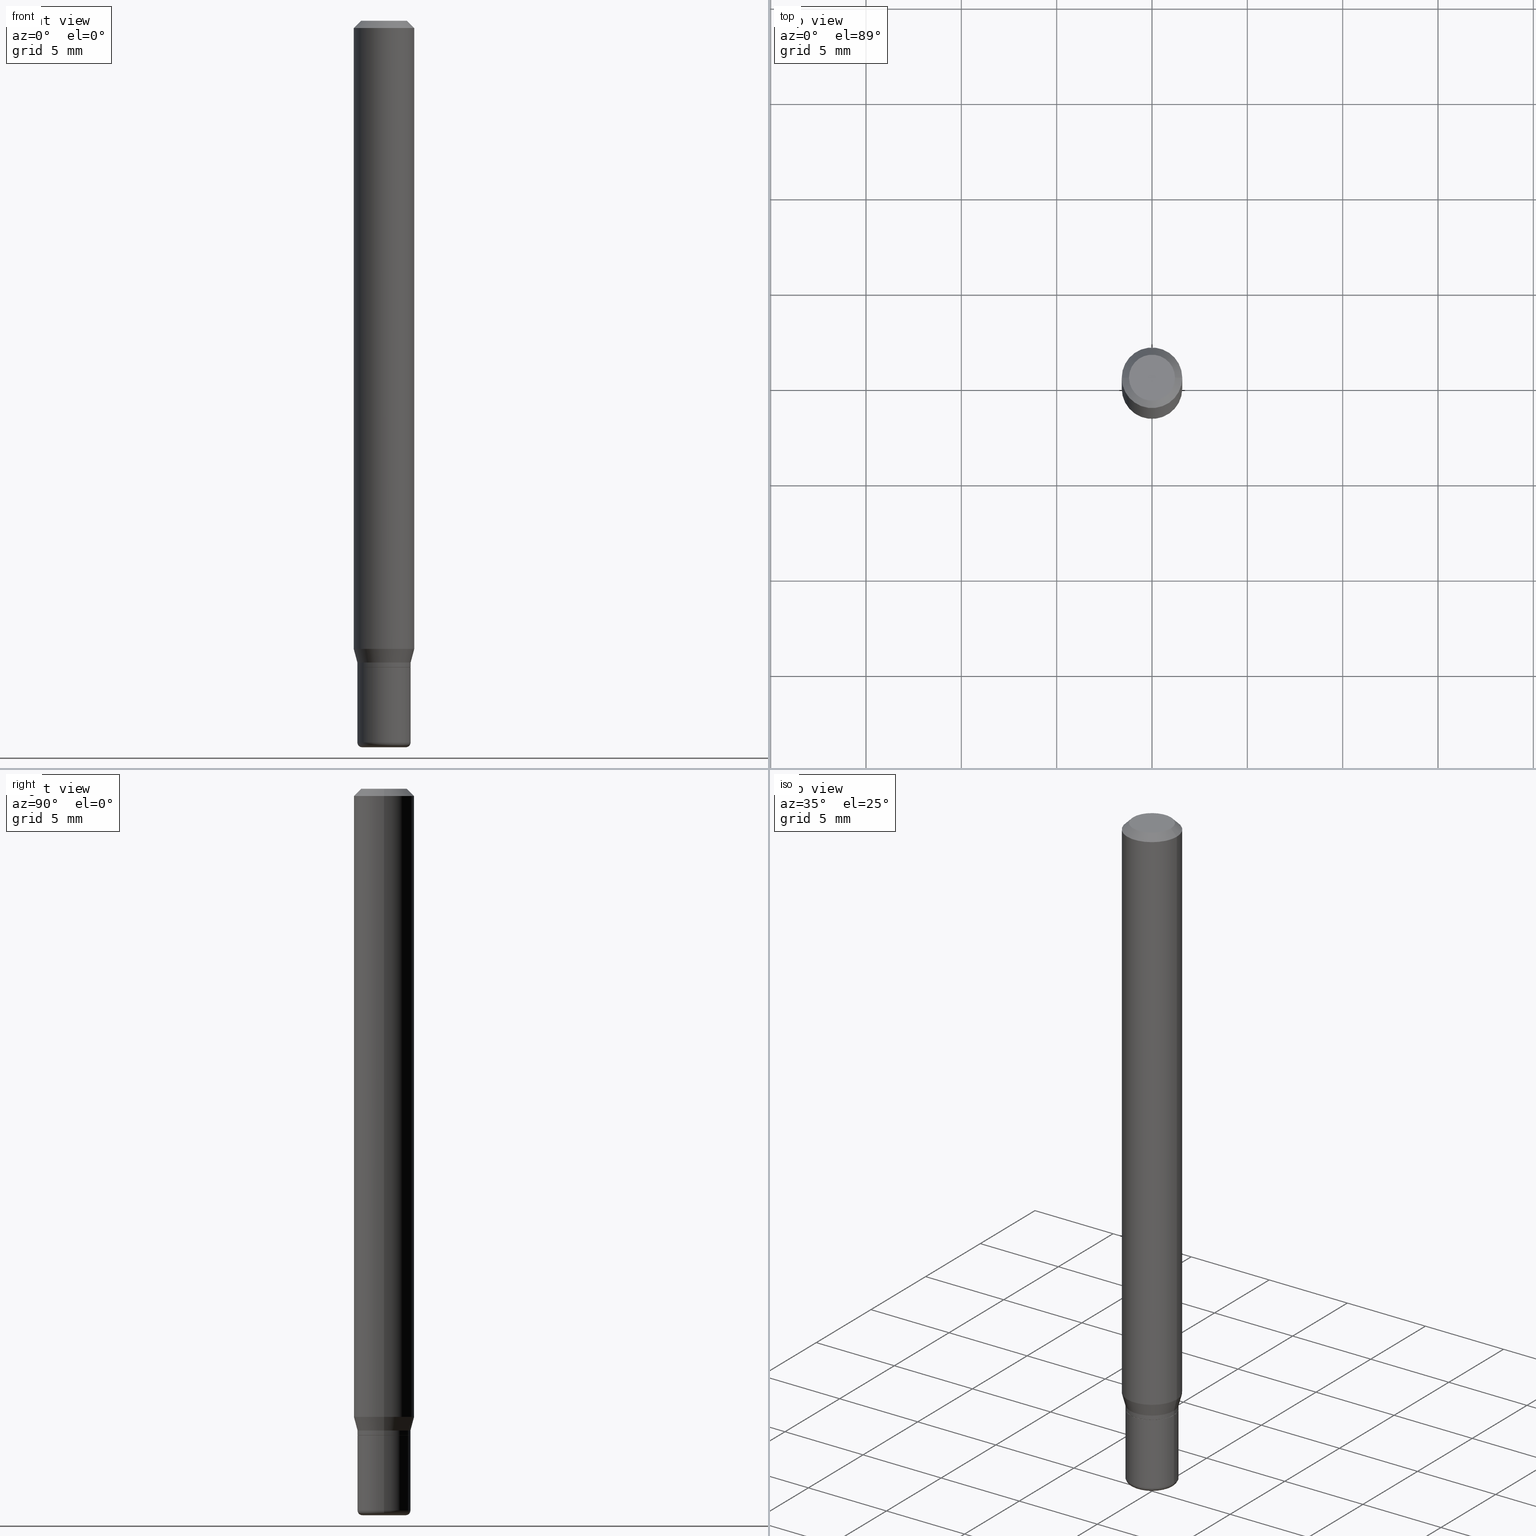
[diagram: canonical four-view strip — front | top / right | iso, engineering-drawing reading convention]
A machine part, canonical four-view strip (front | top / right | iso — engineering-drawing reading convention). The complete STEP part file that produces these views, byte-faithful:
ISO-10303-21;
HEADER;
FILE_DESCRIPTION (( 'STEP AP203' ),
    '1' );
FILE_NAME ('08754.STEP',
    '2024-02-29T20:50:00',
    ( '' ),
    ( '' ),
    'SwSTEP 2.0',
    'SolidWorks 2023',
    '' );
FILE_SCHEMA (( 'CONFIG_CONTROL_DESIGN' ));
ENDSEC;

DATA;
#1 = ORIENTED_EDGE ( 'NONE', *, *, #237, .T. ) ;
#2 = APPLICATION_CONTEXT ( 'configuration controlled 3d designs of mechanical parts and assemblies' ) ;
#3 = MECHANICAL_CONTEXT ( 'NONE', #2, 'mechanical' ) ;
#4 = CARTESIAN_POINT ( 'NONE',  ( 0.05499999999999998640, -3.840629472727445409E-16, 2.681897226687763775E-30 ) ) ;
#5 = DATE_AND_TIME ( #342, #300 ) ;
#6 = DIRECTION ( 'NONE',  ( -2.445468806185136597E-29, 3.491481338843145583E-15, 1.000000000000000000 ) ) ;
#7 = FACE_OUTER_BOUND ( 'NONE', #235, .T. ) ;
#8 = CIRCLE ( 'NONE', #392, 0.009999999999999953371 ) ;
#9 = DIRECTION ( 'NONE',  ( 1.000000000000000000, -6.982962677686269077E-15, 0.000000000000000000 ) ) ;
#10 = EDGE_LOOP ( 'NONE', ( #144, #101, #156, #16 ) ) ;
#11 = DIRECTION ( 'NONE',  ( 1.000000000000000000, -6.982962677686268288E-15, 4.883557194083113462E-29 ) ) ;
#12 = CARTESIAN_POINT ( 'NONE',  ( 0.04499999999999999833, -5.551455328760600652E-15, -1.500000000000000222 ) ) ;
#13 = ORIENTED_EDGE ( 'NONE', *, *, #193, .F. ) ;
#14 = VERTEX_POINT ( 'NONE', #190 ) ;
#15 = EDGE_CURVE ( 'NONE', #100, #138, #270, .T. ) ;
#16 = ORIENTED_EDGE ( 'NONE', *, *, #320, .F. ) ;
#17 = ORIENTED_EDGE ( 'NONE', *, *, #204, .T. ) ;
#18 = CIRCLE ( 'NONE', #99, 0.06250000000000000000 ) ;
#19 = AXIS2_PLACEMENT_3D ( 'NONE', #486, #42, #92 ) ;
#20 = ORIENTED_EDGE ( 'NONE', *, *, #90, .T. ) ;
#21 = ORIENTED_EDGE ( 'NONE', *, *, #204, .F. ) ;
#22 = ORIENTED_EDGE ( 'NONE', *, *, #32, .F. ) ;
#23 = DIRECTION ( 'NONE',  ( -0.2588190451025210170, 5.211531920934547886E-15, 0.9659258262890682012 ) ) ;
#24 = ADVANCED_FACE ( 'NONE', ( #155 ), #231, .T. ) ;
#25 = FACE_OUTER_BOUND ( 'NONE', #499, .T. ) ;
#26 = APPROVAL_DATE_TIME ( #243, #470 ) ;
#27 = CARTESIAN_POINT ( 'NONE',  ( 3.240246168195306775E-29, -4.626212773967169051E-15, -1.325000000000000178 ) ) ;
#28 = CIRCLE ( 'NONE', #502, 0.05500000000000000028 ) ;
#29 = DIRECTION ( 'NONE',  ( 1.000000000000000000, -6.982962677686265922E-15, 4.876176775795935232E-29 ) ) ;
#30 = EDGE_CURVE ( 'NONE', #464, #442, #478, .T. ) ;
#31 = DIRECTION ( 'NONE',  ( 1.000000000000000000, -6.982962677686266711E-15, 4.852736867747365086E-29 ) ) ;
#32 = EDGE_CURVE ( 'NONE', #425, #74, #158, .T. ) ;
#33 = FACE_OUTER_BOUND ( 'NONE', #59, .T. ) ;
#34 = DIRECTION ( 'NONE',  ( 1.000000000000000000, -6.982962677686263555E-15, 0.000000000000000000 ) ) ;
#35 = EDGE_LOOP ( 'NONE', ( #386, #428, #437, #395 ) ) ;
#36 = CC_DESIGN_APPROVAL ( #470, ( #384 ) ) ;
#37 = APPROVAL_STATUS ( 'not_yet_approved' ) ;
#38 = CARTESIAN_POINT ( 'NONE',  ( 3.264700856257157760E-29, -4.661127587355599122E-15, -1.335000000000000187 ) ) ;
#39 = DIRECTION ( 'NONE',  ( -2.445468806185136597E-29, 3.491481338843145583E-15, 1.000000000000000000 ) ) ;
#40 = EDGE_LOOP ( 'NONE', ( #366, #305, #56, #234 ) ) ;
#41 = CYLINDRICAL_SURFACE ( 'NONE', #63, 0.05499999999999997946 ) ;
#42 = DIRECTION ( 'NONE',  ( -2.445468806185136597E-29, 3.491481338843145583E-15, 1.000000000000000000 ) ) ;
#43 = VECTOR ( 'NONE', #475, 39.37007874015748143 ) ;
#44 = CIRCLE ( 'NONE', #357, 0.05499999999999999334 ) ;
#45 = DIRECTION ( 'NONE',  ( 0.2588190451025210170, 1.565188264969624531E-15, 0.9659258262890682012 ) ) ;
#46 = AXIS2_PLACEMENT_3D ( 'NONE', #358, #315, #194 ) ;
#47 = PERSON_AND_ORGANIZATION ( #54, #322 ) ;
#48 = CYLINDRICAL_SURFACE ( 'NONE', #379, 0.06250000000000000000 ) ;
#49 = CARTESIAN_POINT ( 'NONE',  ( 3.264700856257157760E-29, -4.661127587355599122E-15, -1.335000000000000187 ) ) ;
#50 = CARTESIAN_POINT ( 'NONE',  ( 3.668203209277704895E-29, -5.237222008264718177E-15, -1.500000000000000222 ) ) ;
#51 = VERTEX_POINT ( 'NONE', #116 ) ;
#52 = AXIS2_PLACEMENT_3D ( 'NONE', #268, #347, #128 ) ;
#53 = EDGE_CURVE ( 'NONE', #425, #338, #146, .T. ) ;
#54 = PERSON ( 'UNSPECIFIED', 'UNSPECIFIED', 'UNSPECIFIED', ('UNSPECIFIED'), ('UNSPECIFIED'), ('UNSPECIFIED') ) ;
#55 = LINE ( 'NONE', #456, #455 ) ;
#56 = ORIENTED_EDGE ( 'NONE', *, *, #419, .F. ) ;
#57 = COORDINATED_UNIVERSAL_TIME_OFFSET ( 5, 0, .BEHIND. ) ;
#58 = CC_DESIGN_PERSON_AND_ORGANIZATION_ASSIGNMENT ( #87, #381, ( #457 ) ) ;
#59 = EDGE_LOOP ( 'NONE', ( #463, #107, #341, #117 ) ) ;
#60 =( LENGTH_UNIT ( ) NAMED_UNIT ( * ) SI_UNIT ( $, .METRE. ) );
#61 = FACE_OUTER_BOUND ( 'NONE', #504, .T. ) ;
#62 = ORIENTED_EDGE ( 'NONE', *, *, #446, .F. ) ;
#63 = AXIS2_PLACEMENT_3D ( 'NONE', #294, #167, #211 ) ;
#64 = EDGE_LOOP ( 'NONE', ( #1, #238, #22, #355 ) ) ;
#65 = EDGE_CURVE ( 'NONE', #338, #394, #28, .T. ) ;
#66 = FACE_OUTER_BOUND ( 'NONE', #64, .T. ) ;
#67 = CARTESIAN_POINT ( 'NONE',  ( -0.05500000000000000028, -4.540918886447888559E-15, -1.335000000000000187 ) ) ;
#68 = PLANE ( 'NONE',  #340 ) ;
#69 = CARTESIAN_POINT ( 'NONE',  ( 3.668203209277632395E-31, -5.237222008264614861E-17, -0.01499999999999970281 ) ) ;
#70 = CIRCLE ( 'NONE', #277, 0.05449999999999997208 ) ;
#71 = CIRCLE ( 'NONE', #19, 0.04499999999999999833 ) ;
#72 = DIRECTION ( 'NONE',  ( 1.000000000000000000, -6.982962677686262766E-15, 0.000000000000000000 ) ) ;
#73 = FACE_OUTER_BOUND ( 'NONE', #415, .T. ) ;
#74 = VERTEX_POINT ( 'NONE', #373 ) ;
#75 = DIRECTION ( 'NONE',  ( -2.445468806185136597E-29, 3.491481338843145583E-15, 1.000000000000000000 ) ) ;
#76 = DIRECTION ( 'NONE',  ( -2.445468806185136597E-29, 3.491481338843145583E-15, 1.000000000000000000 ) ) ;
#77 = DIRECTION ( 'NONE',  ( -2.445468806185136597E-29, 3.491481338843145583E-15, 1.000000000000000000 ) ) ;
#78 = CARTESIAN_POINT ( 'NONE',  ( 0.000000000000000000, 0.000000000000000000, 0.000000000000000000 ) ) ;
#79 = DIRECTION ( 'NONE',  ( 1.000000000000000000, -6.982962677686263555E-15, 0.000000000000000000 ) ) ;
#80 = ORIENTED_EDGE ( 'NONE', *, *, #482, .T. ) ;
#81 = AXIS2_PLACEMENT_3D ( 'NONE', #443, #157, #31 ) ;
#82 = APPROVAL_PERSON_ORGANIZATION ( #363, #98, #472 ) ;
#83 = CARTESIAN_POINT ( 'NONE',  ( -0.04499999999999999833, -4.864493233690452733E-15, -1.500000000000000222 ) ) ;
#84 = APPROVAL_DATE_TIME ( #5, #212 ) ;
#85 = DIRECTION ( 'NONE',  ( 2.445468806185136597E-29, -3.491481338843145583E-15, -1.000000000000000000 ) ) ;
#86 = DIRECTION ( 'NONE',  ( 1.000000000000000000, -6.982962677686273810E-15, 0.000000000000000000 ) ) ;
#87 = PERSON_AND_ORGANIZATION ( #54, #322 ) ;
#88 = CLOSED_SHELL ( 'NONE', ( #393, #206, #95, #175, #492, #24, #162, #382, #185, #447, #119, #172 ) ) ;
#89 = CIRCLE ( 'NONE', #391, 0.009999999999999953371 ) ;
#90 = EDGE_CURVE ( 'NONE', #317, #464, #481, .T. ) ;
#91 = APPROVAL_PERSON_ORGANIZATION ( #344, #212, #169 ) ;
#92 = DIRECTION ( 'NONE',  ( 1.000000000000000000, -6.982962677686269077E-15, 0.000000000000000000 ) ) ;
#93 = DIRECTION ( 'NONE',  ( 1.000000000000000000, -6.982962677686266711E-15, 0.000000000000000000 ) ) ;
#94 = LENGTH_MEASURE_WITH_UNIT ( LENGTH_MEASURE( 0.02539999999999999897 ), #60 );
#95 = ADVANCED_FACE ( 'NONE', ( #121 ), #332, .T. ) ;
#96 = ORIENTED_EDGE ( 'NONE', *, *, #320, .T. ) ;
#97 = FACE_OUTER_BOUND ( 'NONE', #113, .T. ) ;
#98 = APPROVAL ( #239, 'UNSPECIFIED' ) ;
#99 = AXIS2_PLACEMENT_3D ( 'NONE', #69, #132, #93 ) ;
#100 = VERTEX_POINT ( 'NONE', #291 ) ;
#101 = ORIENTED_EDGE ( 'NONE', *, *, #280, .T. ) ;
#102 = ORIENTED_EDGE ( 'NONE', *, *, #297, .T. ) ;
#103 = VERTEX_POINT ( 'NONE', #83 ) ;
#104 = EDGE_CURVE ( 'NONE', #133, #51, #197, .T. ) ;
#105 = AXIS2_PLACEMENT_3D ( 'NONE', #182, #142, #11 ) ;
#106 = CONICAL_SURFACE ( 'NONE', #120, 0.06250000000000000000, 0.7853981633974488341 ) ;
#107 = ORIENTED_EDGE ( 'NONE', *, *, #248, .T. ) ;
#108 = CARTESIAN_POINT ( 'NONE',  ( -0.06250000000000000000, 4.440892098500626162E-16, -3.074334431409316114E-30 ) ) ;
#109 = COORDINATED_UNIVERSAL_TIME_OFFSET ( 5, 0, .BEHIND. ) ;
#110 = DIRECTION ( 'NONE',  ( 1.000000000000000000, -6.982962677686262766E-15, 0.000000000000000000 ) ) ;
#111 = CARTESIAN_POINT ( 'NONE',  ( 0.06250000000000000000, -4.811533449433669144E-16, -0.01499999999999970281 ) ) ;
#112 = EDGE_CURVE ( 'NONE', #228, #464, #220, .T. ) ;
#113 = EDGE_LOOP ( 'NONE', ( #188, #361, #225, #346 ) ) ;
#114 = AXIS2_PLACEMENT_3D ( 'NONE', #150, #284, #462 ) ;
#115 = CARTESIAN_POINT ( 'NONE',  ( 3.264700856257157760E-29, -4.661127587355599122E-15, -1.335000000000000187 ) ) ;
#116 = CARTESIAN_POINT ( 'NONE',  ( -0.06250000000000000000, -4.084395670990297185E-15, -1.297009618943233633 ) ) ;
#117 = ORIENTED_EDGE ( 'NONE', *, *, #53, .F. ) ;
#118 = CARTESIAN_POINT ( 'NONE',  ( 3.668203209277632395E-31, -5.237222008264614861E-17, -0.01499999999999970281 ) ) ;
#119 = ADVANCED_FACE ( 'NONE', ( #412 ), #287, .T. ) ;
#120 = AXIS2_PLACEMENT_3D ( 'NONE', #292, #506, #202 ) ;
#121 = FACE_OUTER_BOUND ( 'NONE', #496, .T. ) ;
#122 = DIRECTION ( 'NONE',  ( -2.445468806185136597E-29, 3.491481338843145583E-15, 1.000000000000000000 ) ) ;
#123 = CALENDAR_DATE ( 2024, 29, 2 ) ;
#124 = CARTESIAN_POINT ( 'NONE',  ( 3.240246168195306775E-29, -4.626212773967169051E-15, -1.325000000000000178 ) ) ;
#125 = EDGE_CURVE ( 'NONE', #228, #422, #514, .T. ) ;
#126 = CIRCLE ( 'NONE', #81, 0.04750000000000000749 ) ;
#127 = CONICAL_SURFACE ( 'NONE', #491, 0.05499999999999999334, 0.2617993877991496854 ) ;
#128 = DIRECTION ( 'NONE',  ( 1.000000000000000000, -6.982962677686262766E-15, 0.000000000000000000 ) ) ;
#129 = DIRECTION ( 'NONE',  ( -2.445468806185136597E-29, 3.491481338843145583E-15, 1.000000000000000000 ) ) ;
#130 = ORIENTED_EDGE ( 'NONE', *, *, #15, .T. ) ;
#131 = PRODUCT_RELATED_PRODUCT_CATEGORY ( 'detail', '', ( #289 ) ) ;
#132 = DIRECTION ( 'NONE',  ( -2.445468806185136597E-29, 3.491481338843145583E-15, 1.000000000000000000 ) ) ;
#133 = VERTEX_POINT ( 'NONE', #286 ) ;
#134 = AXIS2_PLACEMENT_3D ( 'NONE', #439, #76, #362 ) ;
#135 = VECTOR ( 'NONE', #329, 39.37007874015748143 ) ;
#136 = AXIS2_PLACEMENT_3D ( 'NONE', #254, #434, #267 ) ;
#137 = ORIENTED_EDGE ( 'NONE', *, *, #507, .T. ) ;
#138 = VERTEX_POINT ( 'NONE', #479 ) ;
#139 = EDGE_LOOP ( 'NONE', ( #62, #17, #209, #165 ) ) ;
#140 = DIRECTION ( 'NONE',  ( 1.000000000000000000, -6.982962677686266711E-15, 4.876176775795935793E-29 ) ) ;
#141 = MANIFOLD_SOLID_BREP ( 'Body-Move/Copy2[1]', #374 ) ;
#142 = DIRECTION ( 'NONE',  ( -2.445468806185136597E-29, 3.491481338843145583E-15, 1.000000000000000000 ) ) ;
#143 = CYLINDRICAL_SURFACE ( 'NONE', #321, 0.05499999999999998640 ) ;
#144 = ORIENTED_EDGE ( 'NONE', *, *, #30, .F. ) ;
#145 = CIRCLE ( 'NONE', #408, 0.05499999999999995171 ) ;
#146 = LINE ( 'NONE', #293, #306 ) ;
#147 = ORIENTED_EDGE ( 'NONE', *, *, #507, .F. ) ;
#148 = DIRECTION ( 'NONE',  ( 1.000000000000000000, -6.982962677686273810E-15, 0.000000000000000000 ) ) ;
#149 = ADVANCED_FACE ( 'NONE', ( #33 ), #41, .T. ) ;
#150 = CARTESIAN_POINT ( 'NONE',  ( 3.316907271900976589E-16, 0.04750000000000000749, -2.925296391183627249E-17 ) ) ;
#151 = DIRECTION ( 'NONE',  ( 2.438088387897960049E-29, -3.491481338843145188E-15, -1.000000000000000000 ) ) ;
#152 = CALENDAR_DATE ( 2024, 29, 2 ) ;
#153 = EDGE_CURVE ( 'NONE', #14, #454, #126, .T. ) ;
#154 = DIRECTION ( 'NONE',  ( 1.000000000000000000, -6.982962677686268288E-15, 4.883557194083113462E-29 ) ) ;
#155 = FACE_OUTER_BOUND ( 'NONE', #458, .T. ) ;
#156 = ORIENTED_EDGE ( 'NONE', *, *, #125, .T. ) ;
#157 = DIRECTION ( 'NONE',  ( -2.445468806185136597E-29, 3.491481338843145583E-15, 1.000000000000000000 ) ) ;
#158 = CIRCLE ( 'NONE', #515, 0.05499999999999995171 ) ;
#159 = AXIS2_PLACEMENT_3D ( 'NONE', #307, #451, #350 ) ;
#160 = DESIGN_CONTEXT ( 'detailed design', #411, 'design' ) ;
#161 = AXIS2_PLACEMENT_3D ( 'NONE', #78, #448, #488 ) ;
#162 = ADVANCED_FACE ( 'NONE', ( #246 ), #441, .T. ) ;
#163 = APPROVAL_STATUS ( 'not_yet_approved' ) ;
#164 = APPROVAL_ROLE ( '' ) ;
#165 = ORIENTED_EDGE ( 'NONE', *, *, #15, .F. ) ;
#166 = VERTEX_POINT ( 'NONE', #404 ) ;
#167 = DIRECTION ( 'NONE',  ( -2.445468806185136597E-29, 3.491481338843145583E-15, 1.000000000000000000 ) ) ;
#168 = AXIS2_PLACEMENT_3D ( 'NONE', #50, #218, #9 ) ;
#169 = APPROVAL_ROLE ( '' ) ;
#170 = LOCAL_TIME ( 15, 50, 0.000000000000000000, #367 ) ;
#171 = DIRECTION ( 'NONE',  ( 1.000000000000000000, -6.982962677686273810E-15, 0.000000000000000000 ) ) ;
#172 = ADVANCED_FACE ( 'NONE', ( #372 ), #435, .T. ) ;
#173 = ORIENTED_EDGE ( 'NONE', *, *, #377, .F. ) ;
#174 = ORIENTED_EDGE ( 'NONE', *, *, #248, .F. ) ;
#175 = ADVANCED_FACE ( 'NONE', ( #7 ), #48, .T. ) ;
#176 = PLANE ( 'NONE',  #252 ) ;
#177 = LOCAL_TIME ( 15, 50, 0.000000000000000000, #109 ) ;
#178 = DIRECTION ( 'NONE',  ( -2.445468806185136877E-29, 3.491481338843145188E-15, 1.000000000000000000 ) ) ;
#179 =( NAMED_UNIT ( * ) PLANE_ANGLE_UNIT ( ) SI_UNIT ( $, .RADIAN. ) );
#180 = ADVANCED_BREP_SHAPE_REPRESENTATION ( '08754', ( #141, #489, #161 ), #436 ) ;
#181 = DIRECTION ( 'NONE',  ( -2.445468806185136597E-29, 3.491481338843145583E-15, 1.000000000000000000 ) ) ;
#182 = CARTESIAN_POINT ( 'NONE',  ( 3.643748521215853910E-29, -5.202307194876288105E-15, -1.490000000000000213 ) ) ;
#183 = ORIENTED_EDGE ( 'NONE', *, *, #280, .F. ) ;
#184 = DIRECTION ( 'NONE',  ( -2.445468806185136597E-29, 3.491481338843145583E-15, 1.000000000000000000 ) ) ;
#185 = ADVANCED_FACE ( 'NONE', ( #61 ), #196, .F. ) ;
#186 = VECTOR ( 'NONE', #416, 39.37007874015748143 ) ;
#187 = DIRECTION ( 'NONE',  ( 1.000000000000000000, -6.982962677686263555E-15, 0.000000000000000000 ) ) ;
#188 = ORIENTED_EDGE ( 'NONE', *, *, #407, .F. ) ;
#189 = DIRECTION ( 'NONE',  ( -2.445468806185136597E-29, 3.491481338843145583E-15, 1.000000000000000000 ) ) ;
#190 = CARTESIAN_POINT ( 'NONE',  ( 0.04750000000000000749, -4.035134999187568762E-16, 2.731847993664288856E-16 ) ) ;
#191 = CARTESIAN_POINT ( 'NONE',  ( -0.06250000000000000000, 3.840629472727455270E-16, -0.01499999999999970281 ) ) ;
#192 = FACE_OUTER_BOUND ( 'NONE', #40, .T. ) ;
#193 = EDGE_CURVE ( 'NONE', #138, #100, #18, .T. ) ;
#194 = DIRECTION ( 'NONE',  ( 1.000000000000000000, -6.982962677686265922E-15, 4.876176775795935232E-29 ) ) ;
#195 = PERSON_AND_ORGANIZATION_ROLE ( 'creator' ) ;
#196 = PLANE ( 'NONE',  #114 ) ;
#197 = CIRCLE ( 'NONE', #483, 0.06250000000000000000 ) ;
#198 = AXIS2_PLACEMENT_3D ( 'NONE', #308, #418, #480 ) ;
#199 = DIRECTION ( 'NONE',  ( -1.000000000000000000, 6.982962677686265922E-15, -4.876176775795935793E-29 ) ) ;
#200 = DIRECTION ( 'NONE',  ( -2.445468806185136597E-29, 3.491481338843145583E-15, 1.000000000000000000 ) ) ;
#201 = CARTESIAN_POINT ( 'NONE',  ( 3.643748521215853910E-29, -5.202307194876288105E-15, -1.490000000000000213 ) ) ;
#202 = DIRECTION ( 'NONE',  ( -1.000000000000000000, 6.982962677686266711E-15, 0.000000000000000000 ) ) ;
#203 = DIRECTION ( 'NONE',  ( -2.445468806185136597E-29, 3.491481338843145583E-15, 1.000000000000000000 ) ) ;
#204 = EDGE_CURVE ( 'NONE', #51, #133, #205, .T. ) ;
#205 = CIRCLE ( 'NONE', #52, 0.06250000000000000000 ) ;
#206 = ADVANCED_FACE ( 'NONE', ( #421 ), #399, .T. ) ;
#207 = CIRCLE ( 'NONE', #136, 0.04750000000000000749 ) ;
#208 = DIRECTION ( 'NONE',  ( -1.000000000000000000, 6.982962677686266711E-15, 0.000000000000000000 ) ) ;
#209 = ORIENTED_EDGE ( 'NONE', *, *, #334, .T. ) ;
#210 = DIRECTION ( 'NONE',  ( 1.000000000000000000, -6.982962677686263555E-15, 0.000000000000000000 ) ) ;
#211 = DIRECTION ( 'NONE',  ( 1.000000000000000000, -6.982962677686265922E-15, 4.876176775795935232E-29 ) ) ;
#212 = APPROVAL ( #163, 'UNSPECIFIED' ) ;
#213 = AXIS2_PLACEMENT_3D ( 'NONE', #201, #513, #154 ) ;
#214 = CC_DESIGN_APPROVAL ( #98, ( #457 ) ) ;
#215 = FACE_OUTER_BOUND ( 'NONE', #35, .T. ) ;
#216 = PERSON_AND_ORGANIZATION ( #54, #322 ) ;
#217 = CALENDAR_DATE ( 2024, 29, 2 ) ;
#218 = DIRECTION ( 'NONE',  ( -2.445468806185136597E-29, 3.491481338843145583E-15, 1.000000000000000000 ) ) ;
#219 = ORIENTED_EDGE ( 'NONE', *, *, #104, .T. ) ;
#220 = CIRCLE ( 'NONE', #369, 0.05499999999999997946 ) ;
#221 = CIRCLE ( 'NONE', #376, 0.05449999999999997208 ) ;
#222 = DIRECTION ( 'NONE',  ( -0.7071067811865479058, 2.468850131082261005E-15, -0.7071067811865471286 ) ) ;
#223 = DIRECTION ( 'NONE',  ( 1.000000000000000000, -6.982962677686265133E-15, 0.000000000000000000 ) ) ;
#224 = ORIENTED_EDGE ( 'NONE', *, *, #360, .T. ) ;
#225 = ORIENTED_EDGE ( 'NONE', *, *, #508, .T. ) ;
#226 = ORIENTED_EDGE ( 'NONE', *, *, #360, .F. ) ;
#227 = EDGE_CURVE ( 'NONE', #166, #228, #385, .T. ) ;
#228 = VERTEX_POINT ( 'NONE', #495 ) ;
#229 = VERTEX_POINT ( 'NONE', #12 ) ;
#230 = CARTESIAN_POINT ( 'NONE',  ( 0.05500000000000000028, -5.045190534628344107E-15, -1.335000000000000187 ) ) ;
#231 = CONICAL_SURFACE ( 'NONE', #356, 0.05499999999999999334, 0.2617993877991496854 ) ;
#232 = CIRCLE ( 'NONE', #516, 0.05499999999999999334 ) ;
#233 = DIRECTION ( 'NONE',  ( -2.445468806185136877E-29, 3.491481338843145188E-15, 1.000000000000000000 ) ) ;
#234 = ORIENTED_EDGE ( 'NONE', *, *, #125, .F. ) ;
#235 = EDGE_LOOP ( 'NONE', ( #219, #274, #13, #295 ) ) ;
#236 = UNCERTAINTY_MEASURE_WITH_UNIT (LENGTH_MEASURE( 1.000000000000000082E-05 ), #265, 'distance_accuracy_value', 'NONE');
#237 = EDGE_CURVE ( 'NONE', #229, #103, #430, .T. ) ;
#238 = ORIENTED_EDGE ( 'NONE', *, *, #407, .T. ) ;
#239 = APPROVAL_STATUS ( 'not_yet_approved' ) ;
#240 = CC_DESIGN_PERSON_AND_ORGANIZATION_ASSIGNMENT ( #216, #257, ( #289 ) ) ;
#241 = CARTESIAN_POINT ( 'NONE',  ( 0.05499999999999999334, -5.010275721239913246E-15, -1.325000000000000178 ) ) ;
#242 = ORIENTED_EDGE ( 'NONE', *, *, #336, .T. ) ;
#243 = DATE_AND_TIME ( #123, #278 ) ;
#244 = CARTESIAN_POINT ( 'NONE',  ( -0.04499999999999999833, -4.882562963784243527E-15, -1.490000000000000213 ) ) ;
#245 = AXIS2_PLACEMENT_3D ( 'NONE', #118, #85, #208 ) ;
#246 = FACE_OUTER_BOUND ( 'NONE', #139, .T. ) ;
#247 = DIRECTION ( 'NONE',  ( -2.445468806185136597E-29, 3.491481338843145583E-15, 1.000000000000000000 ) ) ;
#248 = EDGE_CURVE ( 'NONE', #74, #394, #55, .T. ) ;
#249 = CARTESIAN_POINT ( 'NONE',  ( -0.05499999999999999334, -4.235414269299113601E-15, -1.325000000000000178 ) ) ;
#250 = CARTESIAN_POINT ( 'NONE',  ( 3.263478121854064398E-29, -4.659381846686176830E-15, -1.334500000000000020 ) ) ;
#251 = AXIS2_PLACEMENT_3D ( 'NONE', #335, #75, #171 ) ;
#252 = AXIS2_PLACEMENT_3D ( 'NONE', #494, #498, #352 ) ;
#253 = DIRECTION ( 'NONE',  ( 1.000000000000000000, -6.982962677686265133E-15, 0.000000000000000000 ) ) ;
#254 = CARTESIAN_POINT ( 'NONE',  ( -6.680649051745406845E-45, 9.538196290434862081E-31, 2.731847993664263218E-16 ) ) ;
#255 = DIRECTION ( 'NONE',  ( -2.445468806185136597E-29, 3.491481338843145583E-15, 1.000000000000000000 ) ) ;
#256 = CC_DESIGN_PERSON_AND_ORGANIZATION_ASSIGNMENT ( #510, #195, ( #384 ) ) ;
#257 = PERSON_AND_ORGANIZATION_ROLE ( 'design_owner' ) ;
#258 = CARTESIAN_POINT ( 'NONE',  ( -0.05499999999999997946, -4.268583342018122169E-15, -1.334500000000000020 ) ) ;
#259 = SECURITY_CLASSIFICATION_LEVEL ( 'unclassified' ) ;
#260 = DIRECTION ( 'NONE',  ( -2.445468806185136877E-29, 3.491481338843145188E-15, 1.000000000000000000 ) ) ;
#261 = FACE_OUTER_BOUND ( 'NONE', #351, .T. ) ;
#262 = CARTESIAN_POINT ( 'NONE',  ( 0.05499999999999999334, -5.010275721239913246E-15, -1.325000000000000178 ) ) ;
#263 = CARTESIAN_POINT ( 'NONE',  ( 0.05449999999999997208, -5.041699053289501100E-15, -1.335000000000000187 ) ) ;
#264 = ORIENTED_EDGE ( 'NONE', *, *, #311, .F. ) ;
#265 =( CONVERSION_BASED_UNIT ( 'INCH', #94 ) LENGTH_UNIT ( ) NAMED_UNIT ( #405 ) );
#266 = LINE ( 'NONE', #328, #490 ) ;
#267 = DIRECTION ( 'NONE',  ( 1.000000000000000000, -6.982962677686266711E-15, 4.852736867747365086E-29 ) ) ;
#268 = CARTESIAN_POINT ( 'NONE',  ( 3.171796564447748341E-29, -4.528484880840359801E-15, -1.297009618943233633 ) ) ;
#269 = EDGE_LOOP ( 'NONE', ( #273, #349, #417, #183 ) ) ;
#270 = CIRCLE ( 'NONE', #134, 0.06250000000000000000 ) ;
#271 = APPROVAL_PERSON_ORGANIZATION ( #333, #470, #164 ) ;
#272 = ORIENTED_EDGE ( 'NONE', *, *, #311, .T. ) ;
#273 = ORIENTED_EDGE ( 'NONE', *, *, #90, .F. ) ;
#274 = ORIENTED_EDGE ( 'NONE', *, *, #446, .T. ) ;
#275 = CARTESIAN_POINT ( 'NONE',  ( 0.05499999999999995171, -5.586370142149032301E-15, -1.490000000000000213 ) ) ;
#276 = ORIENTED_EDGE ( 'NONE', *, *, #65, .T. ) ;
#277 = AXIS2_PLACEMENT_3D ( 'NONE', #38, #122, #148 ) ;
#278 = LOCAL_TIME ( 15, 50, 0.000000000000000000, #484 ) ;
#279 = DATE_AND_TIME ( #285, #177 ) ;
#280 = EDGE_CURVE ( 'NONE', #464, #228, #414, .T. ) ;
#281 = LINE ( 'NONE', #108, #444 ) ;
#282 = ORIENTED_EDGE ( 'NONE', *, *, #227, .F. ) ;
#283 = DATE_AND_TIME ( #152, #170 ) ;
#284 = DIRECTION ( 'NONE',  ( 2.438088387897960049E-29, -3.491481338843145188E-15, -1.000000000000000000 ) ) ;
#285 = CALENDAR_DATE ( 2024, 29, 2 ) ;
#286 = CARTESIAN_POINT ( 'NONE',  ( 0.06250000000000000000, -4.964920048195750682E-15, -1.297009618943233633 ) ) ;
#287 = CONICAL_SURFACE ( 'NONE', #251, 0.05449999999999997208, 0.7853981633972775267 ) ;
#288 = CARTESIAN_POINT ( 'NONE',  ( 3.643748521215853910E-29, -5.202307194876288105E-15, -1.490000000000000213 ) ) ;
#289 = PRODUCT ( '08754', '08754', '', ( #3 ) ) ;
#290 = EDGE_CURVE ( 'NONE', #422, #133, #343, .T. ) ;
#291 = CARTESIAN_POINT ( 'NONE',  ( -0.06250000000000000000, -1.846339340611439838E-15, -0.01499999999999970281 ) ) ;
#292 = CARTESIAN_POINT ( 'NONE',  ( 3.668203209277632395E-31, -5.237222008264614861E-17, -0.01499999999999970281 ) ) ;
#293 = CARTESIAN_POINT ( 'NONE',  ( 0.05499999999999997946, -3.840629472727444916E-16, 2.681897226687763425E-30 ) ) ;
#294 = CARTESIAN_POINT ( 'NONE',  ( 0.000000000000000000, 0.000000000000000000, 0.000000000000000000 ) ) ;
#295 = ORIENTED_EDGE ( 'NONE', *, *, #334, .F. ) ;
#296 = DIRECTION ( 'NONE',  ( 1.000000000000000000, -6.982962677686266711E-15, 4.876176775795935793E-29 ) ) ;
#297 = EDGE_CURVE ( 'NONE', #74, #425, #145, .T. ) ;
#298 = AXIS2_PLACEMENT_3D ( 'NONE', #309, #453, #223 ) ;
#299 = ADVANCED_FACE ( 'NONE', ( #97 ), #364, .T. ) ;
#300 = LOCAL_TIME ( 15, 50, 0.000000000000000000, #345 ) ;
#301 = PERSON_AND_ORGANIZATION ( #54, #322 ) ;
#302 = CARTESIAN_POINT ( 'NONE',  ( 3.171796564447748341E-29, -4.528484880840359801E-15, -1.297009618943233633 ) ) ;
#303 = CARTESIAN_POINT ( 'NONE',  ( -0.04750000000000000749, 3.578768372314221353E-16, 2.731847993664239060E-16 ) ) ;
#304 = DIRECTION ( 'NONE',  ( 1.000000000000000000, -6.982962677686269077E-15, 0.000000000000000000 ) ) ;
#305 = ORIENTED_EDGE ( 'NONE', *, *, #30, .T. ) ;
#306 = VECTOR ( 'NONE', #326, 39.37007874015748143 ) ;
#307 = CARTESIAN_POINT ( 'NONE',  ( 3.264700856257157760E-29, -4.661127587355599122E-15, -1.335000000000000187 ) ) ;
#308 = CARTESIAN_POINT ( 'NONE',  ( 3.264700856257157760E-29, -4.661127587355599122E-15, -1.335000000000000187 ) ) ;
#309 = CARTESIAN_POINT ( 'NONE',  ( 3.263478121854064398E-29, -4.659381846686176830E-15, -1.334500000000000020 ) ) ;
#310 = ORIENTED_EDGE ( 'NONE', *, *, #290, .T. ) ;
#311 = EDGE_CURVE ( 'NONE', #454, #100, #501, .T. ) ;
#312 = VECTOR ( 'NONE', #403, 39.37007874015748143 ) ;
#313 = CARTESIAN_POINT ( 'NONE',  ( -0.05449999999999997208, -4.271232569192233370E-15, -1.335000000000000187 ) ) ;
#314 = CC_DESIGN_DATE_AND_TIME_ASSIGNMENT ( #283, #327, ( #384 ) ) ;
#315 = DIRECTION ( 'NONE',  ( -2.445468806185136597E-29, 3.491481338843145583E-15, 1.000000000000000000 ) ) ;
#316 = EDGE_LOOP ( 'NONE', ( #469, #324 ) ) ;
#317 = VERTEX_POINT ( 'NONE', #313 ) ;
#318 = DIRECTION ( 'NONE',  ( -2.445468806185136597E-29, 3.491481338843145583E-15, 1.000000000000000000 ) ) ;
#319 = ORIENTED_EDGE ( 'NONE', *, *, #237, .F. ) ;
#320 = EDGE_CURVE ( 'NONE', #442, #422, #44, .T. ) ;
#321 = AXIS2_PLACEMENT_3D ( 'NONE', #325, #318, #29 ) ;
#322 = ORGANIZATION ( 'UNSPECIFIED', 'UNSPECIFIED', '' ) ;
#323 = LINE ( 'NONE', #249, #465 ) ;
#324 = ORIENTED_EDGE ( 'NONE', *, *, #459, .F. ) ;
#325 = CARTESIAN_POINT ( 'NONE',  ( 0.000000000000000000, 0.000000000000000000, 0.000000000000000000 ) ) ;
#326 = DIRECTION ( 'NONE',  ( -2.445468806185136877E-29, 3.491481338843145188E-15, 1.000000000000000000 ) ) ;
#327 = DATE_TIME_ROLE ( 'creation_date' ) ;
#328 = CARTESIAN_POINT ( 'NONE',  ( 0.06250000000000000000, -4.364351673553916694E-16, 3.047610484872459871E-30 ) ) ;
#329 = DIRECTION ( 'NONE',  ( 0.7071067811865479058, -7.319954787623257623E-15, -0.7071067811865471286 ) ) ;
#330 = ORIENTED_EDGE ( 'NONE', *, *, #193, .T. ) ;
#331 = DIRECTION ( 'NONE',  ( 1.000000000000000000, -6.982962677686265922E-15, 4.876176775795935232E-29 ) ) ;
#332 = CONICAL_SURFACE ( 'NONE', #245, 0.06250000000000000000, 0.7853981633974488341 ) ;
#333 = PERSON_AND_ORGANIZATION ( #54, #322 ) ;
#334 = EDGE_CURVE ( 'NONE', #133, #138, #266, .T. ) ;
#335 = CARTESIAN_POINT ( 'NONE',  ( 3.264700856257157760E-29, -4.661127587355599122E-15, -1.335000000000000187 ) ) ;
#336 = EDGE_CURVE ( 'NONE', #166, #317, #70, .T. ) ;
#337 = CC_DESIGN_PERSON_AND_ORGANIZATION_ASSIGNMENT ( #301, #473, ( #457 ) ) ;
#338 = VERTEX_POINT ( 'NONE', #230 ) ;
#339 = CARTESIAN_POINT ( 'NONE',  ( 3.643748521215853910E-29, -5.202307194876288105E-15, -1.490000000000000213 ) ) ;
#340 = AXIS2_PLACEMENT_3D ( 'NONE', #433, #512, #471 ) ;
#341 = ORIENTED_EDGE ( 'NONE', *, *, #65, .F. ) ;
#342 = CALENDAR_DATE ( 2024, 29, 2 ) ;
#343 = LINE ( 'NONE', #262, #409 ) ;
#344 = PERSON_AND_ORGANIZATION ( #54, #322 ) ;
#345 = COORDINATED_UNIVERSAL_TIME_OFFSET ( 5, 0, .BEHIND. ) ;
#346 = ORIENTED_EDGE ( 'NONE', *, *, #297, .F. ) ;
#347 = DIRECTION ( 'NONE',  ( -2.445468806185136597E-29, 3.491481338843145583E-15, 1.000000000000000000 ) ) ;
#348 = AXIS2_PLACEMENT_3D ( 'NONE', #402, #368, #331 ) ;
#349 = ORIENTED_EDGE ( 'NONE', *, *, #459, .T. ) ;
#350 = DIRECTION ( 'NONE',  ( 1.000000000000000000, -6.982962677686273810E-15, 0.000000000000000000 ) ) ;
#351 = EDGE_LOOP ( 'NONE', ( #319, #353 ) ) ;
#352 = DIRECTION ( 'NONE',  ( 1.000000000000000000, -6.982962677686265922E-15, 4.876176775795935793E-29 ) ) ;
#353 = ORIENTED_EDGE ( 'NONE', *, *, #461, .F. ) ;
#354 = ORIENTED_EDGE ( 'NONE', *, *, #153, .F. ) ;
#355 = ORIENTED_EDGE ( 'NONE', *, *, #508, .F. ) ;
#356 = AXIS2_PLACEMENT_3D ( 'NONE', #27, #200, #34 ) ;
#357 = AXIS2_PLACEMENT_3D ( 'NONE', #383, #181, #210 ) ;
#358 = CARTESIAN_POINT ( 'NONE',  ( 0.000000000000000000, 0.000000000000000000, 0.000000000000000000 ) ) ;
#359 = ORIENTED_EDGE ( 'NONE', *, *, #53, .T. ) ;
#360 = EDGE_CURVE ( 'NONE', #14, #138, #429, .T. ) ;
#361 = ORIENTED_EDGE ( 'NONE', *, *, #461, .T. ) ;
#362 = DIRECTION ( 'NONE',  ( 1.000000000000000000, -6.982962677686266711E-15, 0.000000000000000000 ) ) ;
#363 = PERSON_AND_ORGANIZATION ( #54, #322 ) ;
#364 = TOROIDAL_SURFACE ( 'NONE', #105, 0.04499999999999999833, 0.009999999999999953371 ) ;
#365 = CARTESIAN_POINT ( 'NONE',  ( -0.05499999999999998640, 3.907985046680550056E-16, -2.705414299640197311E-30 ) ) ;
#366 = ORIENTED_EDGE ( 'NONE', *, *, #112, .T. ) ;
#367 = COORDINATED_UNIVERSAL_TIME_OFFSET ( 5, 0, .BEHIND. ) ;
#368 = DIRECTION ( 'NONE',  ( -2.445468806185136597E-29, 3.491481338843145583E-15, 1.000000000000000000 ) ) ;
#369 = AXIS2_PLACEMENT_3D ( 'NONE', #250, #438, #253 ) ;
#370 = APPLICATION_PROTOCOL_DEFINITION ( 'international standard', 'config_control_design', 1994, #411 ) ;
#371 = ORIENTED_EDGE ( 'NONE', *, *, #482, .F. ) ;
#372 = FACE_OUTER_BOUND ( 'NONE', #10, .T. ) ;
#373 = CARTESIAN_POINT ( 'NONE',  ( -0.05499999999999995171, -4.540918886447888559E-15, -1.490000000000000213 ) ) ;
#374 = CLOSED_SHELL ( 'NONE', ( #397, #149, #413, #440, #299, #466 ) ) ;
#375 = VECTOR ( 'NONE', #445, 39.37007874015748143 ) ;
#376 = AXIS2_PLACEMENT_3D ( 'NONE', #49, #6, #86 ) ;
#377 = EDGE_CURVE ( 'NONE', #442, #51, #323, .T. ) ;
#378 = PERSON_AND_ORGANIZATION_ROLE ( 'classification_officer' ) ;
#379 = AXIS2_PLACEMENT_3D ( 'NONE', #426, #184, #140 ) ;
#380 = CIRCLE ( 'NONE', #198, 0.05500000000000000028 ) ;
#381 = PERSON_AND_ORGANIZATION_ROLE ( 'design_supplier' ) ;
#382 = ADVANCED_FACE ( 'NONE', ( #73 ), #106, .T. ) ;
#383 = CARTESIAN_POINT ( 'NONE',  ( 3.240246168195306775E-29, -4.626212773967169051E-15, -1.325000000000000178 ) ) ;
#384 = PRODUCT_DEFINITION ( 'UNKNOWN', '', #457, #160 ) ;
#385 = LINE ( 'NONE', #263, #186 ) ;
#386 = ORIENTED_EDGE ( 'NONE', *, *, #419, .T. ) ;
#387 = EDGE_LOOP ( 'NONE', ( #242, #20, #423, #282 ) ) ;
#388 = DATE_AND_TIME ( #217, #511 ) ;
#389 = ORIENTED_EDGE ( 'NONE', *, *, #153, .T. ) ;
#390 = PLANE ( 'NONE',  #449 ) ;
#391 = AXIS2_PLACEMENT_3D ( 'NONE', #244, #474, #460 ) ;
#392 = AXIS2_PLACEMENT_3D ( 'NONE', #406, #400, #452 ) ;
#393 = ADVANCED_FACE ( 'NONE', ( #192 ), #143, .T. ) ;
#394 = VERTEX_POINT ( 'NONE', #67 ) ;
#395 = ORIENTED_EDGE ( 'NONE', *, *, #290, .F. ) ;
#396 = FACE_OUTER_BOUND ( 'NONE', #500, .T. ) ;
#397 = ADVANCED_FACE ( 'NONE', ( #66 ), #476, .T. ) ;
#398 = CYLINDRICAL_SURFACE ( 'NONE', #46, 0.05499999999999997946 ) ;
#399 = CONICAL_SURFACE ( 'NONE', #159, 0.05449999999999997208, 0.7853981633972775267 ) ;
#400 = DIRECTION ( 'NONE',  ( -6.982962677686266711E-15, -1.000000000000000000, 3.491481338843145583E-15 ) ) ;
#401 = CC_DESIGN_DATE_AND_TIME_ASSIGNMENT ( #388, #493, ( #450 ) ) ;
#402 = CARTESIAN_POINT ( 'NONE',  ( 0.000000000000000000, 0.000000000000000000, 0.000000000000000000 ) ) ;
#403 = DIRECTION ( 'NONE',  ( -2.445468806185136877E-29, 3.491481338843145188E-15, 1.000000000000000000 ) ) ;
#404 = CARTESIAN_POINT ( 'NONE',  ( 0.05449999999999997208, -5.041699053289501100E-15, -1.335000000000000187 ) ) ;
#405 = DIMENSIONAL_EXPONENTS ( 1.000000000000000000, 0.000000000000000000, 0.000000000000000000, 0.000000000000000000, 0.000000000000000000, 0.000000000000000000, 0.000000000000000000 ) ;
#406 = CARTESIAN_POINT ( 'NONE',  ( 0.04499999999999999833, -5.516540515372169792E-15, -1.490000000000000213 ) ) ;
#407 = EDGE_CURVE ( 'NONE', #103, #74, #89, .T. ) ;
#408 = AXIS2_PLACEMENT_3D ( 'NONE', #339, #129, #505 ) ;
#409 = VECTOR ( 'NONE', #45, 39.37007874015748143 ) ;
#410 = APPLICATION_PROTOCOL_DEFINITION ( 'international standard', 'config_control_design', 1994, #2 ) ;
#411 = APPLICATION_CONTEXT ( 'configuration controlled 3d designs of mechanical parts and assemblies' ) ;
#412 = FACE_OUTER_BOUND ( 'NONE', #269, .T. ) ;
#413 = ADVANCED_FACE ( 'NONE', ( #396 ), #390, .F. ) ;
#414 = CIRCLE ( 'NONE', #298, 0.05499999999999997946 ) ;
#415 = EDGE_LOOP ( 'NONE', ( #226, #147, #272, #130 ) ) ;
#416 = DIRECTION ( 'NONE',  ( 0.7071067811864267805, -2.468850131080992517E-15, 0.7071067811866682540 ) ) ;
#417 = ORIENTED_EDGE ( 'NONE', *, *, #227, .T. ) ;
#418 = DIRECTION ( 'NONE',  ( -2.445468806185136597E-29, 3.491481338843145583E-15, 1.000000000000000000 ) ) ;
#419 = EDGE_CURVE ( 'NONE', #422, #442, #232, .T. ) ;
#420 = VECTOR ( 'NONE', #222, 39.37007874015748143 ) ;
#421 = FACE_OUTER_BOUND ( 'NONE', #387, .T. ) ;
#422 = VERTEX_POINT ( 'NONE', #241 ) ;
#423 = ORIENTED_EDGE ( 'NONE', *, *, #112, .F. ) ;
#424 = CARTESIAN_POINT ( 'NONE',  ( 3.240246168195306775E-29, -4.626212773967169051E-15, -1.325000000000000178 ) ) ;
#425 = VERTEX_POINT ( 'NONE', #275 ) ;
#426 = CARTESIAN_POINT ( 'NONE',  ( 0.000000000000000000, 0.000000000000000000, 0.000000000000000000 ) ) ;
#427 = CARTESIAN_POINT ( 'NONE',  ( -0.05499999999999999334, -4.159904970144704999E-15, -1.325000000000000178 ) ) ;
#428 = ORIENTED_EDGE ( 'NONE', *, *, #377, .T. ) ;
#429 = LINE ( 'NONE', #111, #135 ) ;
#430 = CIRCLE ( 'NONE', #168, 0.04499999999999999833 ) ;
#431 = APPROVAL_DATE_TIME ( #279, #98 ) ;
#432 = FACE_OUTER_BOUND ( 'NONE', #316, .T. ) ;
#433 = CARTESIAN_POINT ( 'NONE',  ( 3.264700856257157760E-29, -4.661127587355599122E-15, -1.335000000000000187 ) ) ;
#434 = DIRECTION ( 'NONE',  ( -2.445468806185136597E-29, 3.491481338843145583E-15, 1.000000000000000000 ) ) ;
#435 = CYLINDRICAL_SURFACE ( 'NONE', #348, 0.05499999999999998640 ) ;
#436 =( GEOMETRIC_REPRESENTATION_CONTEXT ( 3 ) GLOBAL_UNCERTAINTY_ASSIGNED_CONTEXT ( ( #236 ) ) GLOBAL_UNIT_ASSIGNED_CONTEXT ( ( #265, #179, #497 ) ) REPRESENTATION_CONTEXT ( 'NONE', 'WORKASPACE' ) );
#437 = ORIENTED_EDGE ( 'NONE', *, *, #104, .F. ) ;
#438 = DIRECTION ( 'NONE',  ( -2.445468806185136597E-29, 3.491481338843145583E-15, 1.000000000000000000 ) ) ;
#439 = CARTESIAN_POINT ( 'NONE',  ( 3.668203209277632395E-31, -5.237222008264614861E-17, -0.01499999999999970281 ) ) ;
#440 = ADVANCED_FACE ( 'NONE', ( #25 ), #398, .T. ) ;
#441 = CYLINDRICAL_SURFACE ( 'NONE', #509, 0.06250000000000000000 ) ;
#442 = VERTEX_POINT ( 'NONE', #427 ) ;
#443 = CARTESIAN_POINT ( 'NONE',  ( -6.680649051745406845E-45, 9.538196290434862081E-31, 2.731847993664263218E-16 ) ) ;
#444 = VECTOR ( 'NONE', #233, 39.37007874015748143 ) ;
#445 = DIRECTION ( 'NONE',  ( -0.7071067811864267805, 7.493145998869918709E-15, 0.7071067811866682540 ) ) ;
#446 = EDGE_CURVE ( 'NONE', #51, #100, #281, .T. ) ;
#447 = ADVANCED_FACE ( 'NONE', ( #432 ), #68, .F. ) ;
#448 = DIRECTION ( 'NONE',  ( 0.000000000000000000, 0.000000000000000000, 1.000000000000000000 ) ) ;
#449 = AXIS2_PLACEMENT_3D ( 'NONE', #468, #151, #199 ) ;
#450 = SECURITY_CLASSIFICATION ( '', '', #259 ) ;
#451 = DIRECTION ( 'NONE',  ( -2.445468806185136597E-29, 3.491481338843145583E-15, 1.000000000000000000 ) ) ;
#452 = DIRECTION ( 'NONE',  ( 1.000000000000000000, -6.982962677686269077E-15, 0.000000000000000000 ) ) ;
#453 = DIRECTION ( 'NONE',  ( -2.445468806185136597E-29, 3.491481338843145583E-15, 1.000000000000000000 ) ) ;
#454 = VERTEX_POINT ( 'NONE', #303 ) ;
#455 = VECTOR ( 'NONE', #178, 39.37007874015748143 ) ;
#456 = CARTESIAN_POINT ( 'NONE',  ( -0.05499999999999997946, 3.907985046680549563E-16, -2.705414299640196961E-30 ) ) ;
#457 = PRODUCT_DEFINITION_FORMATION_WITH_SPECIFIED_SOURCE ( 'ANY', '', #289, .NOT_KNOWN. ) ;
#458 = EDGE_LOOP ( 'NONE', ( #173, #96, #310, #21 ) ) ;
#459 = EDGE_CURVE ( 'NONE', #317, #166, #221, .T. ) ;
#460 = DIRECTION ( 'NONE',  ( -1.000000000000000000, 7.105427357600958471E-15, 0.000000000000000000 ) ) ;
#461 = EDGE_CURVE ( 'NONE', #103, #229, #71, .T. ) ;
#462 = DIRECTION ( 'NONE',  ( -1.000000000000000000, 6.982962677686265922E-15, -4.876176775795935793E-29 ) ) ;
#463 = ORIENTED_EDGE ( 'NONE', *, *, #32, .T. ) ;
#464 = VERTEX_POINT ( 'NONE', #258 ) ;
#465 = VECTOR ( 'NONE', #23, 39.37007874015748143 ) ;
#466 = ADVANCED_FACE ( 'NONE', ( #261 ), #176, .F. ) ;
#467 = PRODUCT_DEFINITION_SHAPE ( 'NONE', 'NONE',  #384 ) ;
#468 = CARTESIAN_POINT ( 'NONE',  ( 3.840629472727772786E-16, 0.05499999999999534428, -1.335000000000000409 ) ) ;
#469 = ORIENTED_EDGE ( 'NONE', *, *, #336, .F. ) ;
#470 = APPROVAL ( #37, 'UNSPECIFIED' ) ;
#471 = DIRECTION ( 'NONE',  ( 1.000000000000000000, -6.982962677686265922E-15, 4.876176775795935793E-29 ) ) ;
#472 = APPROVAL_ROLE ( '' ) ;
#473 = PERSON_AND_ORGANIZATION_ROLE ( 'creator' ) ;
#474 = DIRECTION ( 'NONE',  ( 7.105427357601001859E-15, 1.000000000000000000, -3.491481338843145583E-15 ) ) ;
#475 = DIRECTION ( 'NONE',  ( -2.445468806185136877E-29, 3.491481338843145188E-15, 1.000000000000000000 ) ) ;
#476 = TOROIDAL_SURFACE ( 'NONE', #213, 0.04499999999999999833, 0.009999999999999953371 ) ;
#477 = CC_DESIGN_SECURITY_CLASSIFICATION ( #450, ( #457 ) ) ;
#478 = LINE ( 'NONE', #365, #43 ) ;
#479 = CARTESIAN_POINT ( 'NONE',  ( 0.06250000000000000000, -4.888073874380378612E-16, -0.01499999999999970281 ) ) ;
#480 = DIRECTION ( 'NONE',  ( 1.000000000000000000, -6.982962677686262766E-15, 0.000000000000000000 ) ) ;
#481 = LINE ( 'NONE', #517, #375 ) ;
#482 = EDGE_CURVE ( 'NONE', #394, #338, #380, .T. ) ;
#483 = AXIS2_PLACEMENT_3D ( 'NONE', #302, #255, #110 ) ;
#484 = COORDINATED_UNIVERSAL_TIME_OFFSET ( 5, 0, .BEHIND. ) ;
#485 = SHAPE_DEFINITION_REPRESENTATION ( #467, #180 ) ;
#486 = CARTESIAN_POINT ( 'NONE',  ( 3.668203209277704895E-29, -5.237222008264718177E-15, -1.500000000000000222 ) ) ;
#487 = CC_DESIGN_PERSON_AND_ORGANIZATION_ASSIGNMENT ( #47, #378, ( #450 ) ) ;
#488 = DIRECTION ( 'NONE',  ( 1.000000000000000000, 0.000000000000000000, 0.000000000000000000 ) ) ;
#489 = MANIFOLD_SOLID_BREP ( 'Body-Move/Copy2[2]', #88 ) ;
#490 = VECTOR ( 'NONE', #260, 39.37007874015748143 ) ;
#491 = AXIS2_PLACEMENT_3D ( 'NONE', #124, #203, #79 ) ;
#492 = ADVANCED_FACE ( 'NONE', ( #215 ), #127, .T. ) ;
#493 = DATE_TIME_ROLE ( 'classification_date' ) ;
#494 = CARTESIAN_POINT ( 'NONE',  ( 3.582686580359766038E-29, -5.359686688179453325E-15, -1.500000000000000222 ) ) ;
#495 = CARTESIAN_POINT ( 'NONE',  ( 0.05499999999999997946, -5.043444793958922603E-15, -1.334500000000000020 ) ) ;
#496 = EDGE_LOOP ( 'NONE', ( #354, #224, #330, #264 ) ) ;
#497 =( NAMED_UNIT ( * ) SI_UNIT ( $, .STERADIAN. ) SOLID_ANGLE_UNIT ( ) );
#498 = DIRECTION ( 'NONE',  ( -2.438088387897960049E-29, 3.491481338843145188E-15, 1.000000000000000000 ) ) ;
#499 = EDGE_LOOP ( 'NONE', ( #174, #102, #359, #371 ) ) ;
#500 = EDGE_LOOP ( 'NONE', ( #276, #80 ) ) ;
#501 = LINE ( 'NONE', #191, #420 ) ;
#502 = AXIS2_PLACEMENT_3D ( 'NONE', #115, #39, #72 ) ;
#503 = CC_DESIGN_APPROVAL ( #212, ( #450 ) ) ;
#504 = EDGE_LOOP ( 'NONE', ( #137, #389 ) ) ;
#505 = DIRECTION ( 'NONE',  ( 1.000000000000000000, -6.982962677686269077E-15, 0.000000000000000000 ) ) ;
#506 = DIRECTION ( 'NONE',  ( 2.445468806185136597E-29, -3.491481338843145583E-15, -1.000000000000000000 ) ) ;
#507 = EDGE_CURVE ( 'NONE', #454, #14, #207, .T. ) ;
#508 = EDGE_CURVE ( 'NONE', #229, #425, #8, .T. ) ;
#509 = AXIS2_PLACEMENT_3D ( 'NONE', #518, #77, #296 ) ;
#510 = PERSON_AND_ORGANIZATION ( #54, #322 ) ;
#511 = LOCAL_TIME ( 15, 50, 0.000000000000000000, #57 ) ;
#512 = DIRECTION ( 'NONE',  ( -2.438088387897960049E-29, 3.491481338843145188E-15, 1.000000000000000000 ) ) ;
#513 = DIRECTION ( 'NONE',  ( -2.445468806185136597E-29, 3.491481338843145583E-15, 1.000000000000000000 ) ) ;
#514 = LINE ( 'NONE', #4, #312 ) ;
#515 = AXIS2_PLACEMENT_3D ( 'NONE', #288, #247, #304 ) ;
#516 = AXIS2_PLACEMENT_3D ( 'NONE', #424, #189, #187 ) ;
#517 = CARTESIAN_POINT ( 'NONE',  ( -0.05449999999999997208, -4.273881796366344571E-15, -1.335000000000000187 ) ) ;
#518 = CARTESIAN_POINT ( 'NONE',  ( 0.000000000000000000, 0.000000000000000000, 0.000000000000000000 ) ) ;
ENDSEC;
END-ISO-10303-21;
